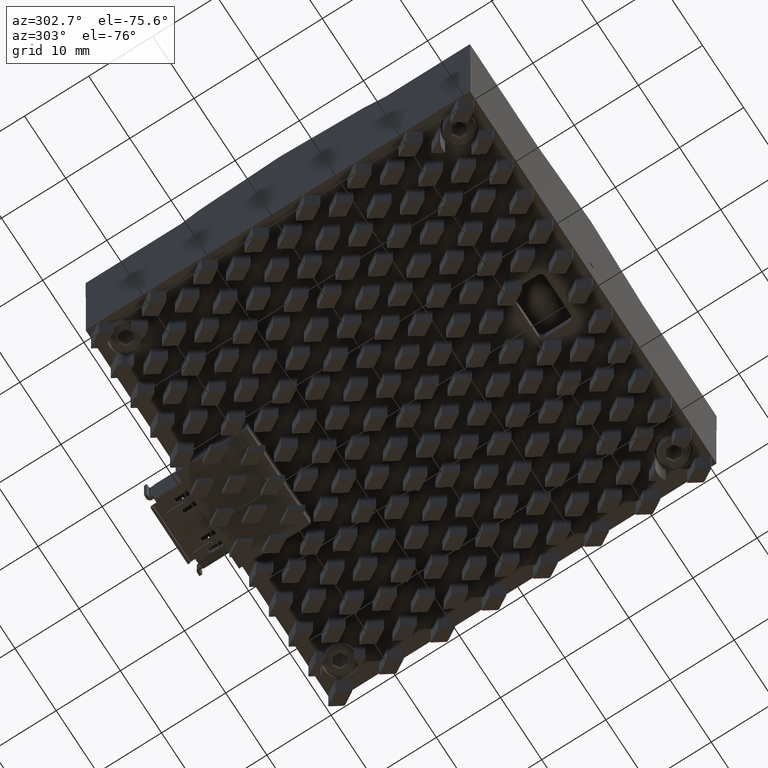
[diagram: clean part render]
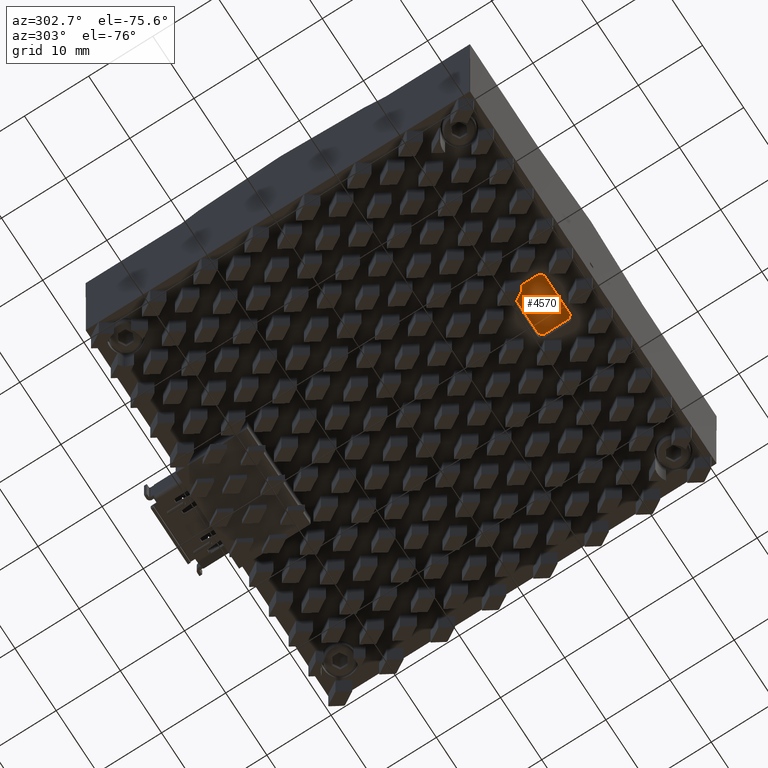
[diagram: same view with one face highlighted and labeled with its STEP entity id]
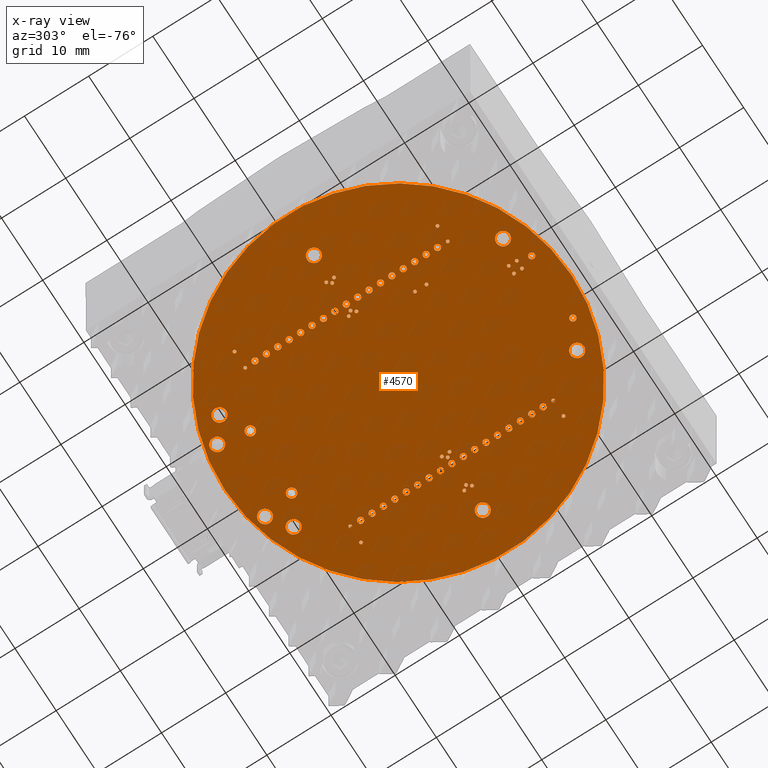
[diagram: x-ray of the same camera — body ghosted, the highlighted face saturated]
A machine part, auxiliary view. The second image highlights one B-rep face of the part: STEP entity #4570.
The next image is the same camera in x-ray: the body ghosted, the highlighted face saturated — about 25% of this face is hidden behind the body in this view.
In plain terms, the highlighted planar face has unit normal (0, 0, 1).
Its self-contained STEP definition (entity closure, byte-faithful):
#1094=PLANE('',#52629);
#3550=FACE_BOUND('',#10445,.T.);
#3551=FACE_BOUND('',#10446,.T.);
#3552=FACE_BOUND('',#10447,.T.);
#3553=FACE_BOUND('',#10448,.T.);
#3554=FACE_BOUND('',#10449,.T.);
#3555=FACE_BOUND('',#10450,.T.);
#3556=FACE_BOUND('',#10451,.T.);
#3557=FACE_BOUND('',#10452,.T.);
#3558=FACE_BOUND('',#10453,.T.);
#3559=FACE_BOUND('',#10454,.T.);
#3560=FACE_BOUND('',#10455,.T.);
#3561=FACE_BOUND('',#10456,.T.);
#3562=FACE_BOUND('',#10457,.T.);
#3563=FACE_BOUND('',#10458,.T.);
#3564=FACE_BOUND('',#10459,.T.);
#3565=FACE_BOUND('',#10460,.T.);
#3566=FACE_BOUND('',#10461,.T.);
#3567=FACE_BOUND('',#10462,.T.);
#3568=FACE_BOUND('',#10463,.T.);
#3569=FACE_BOUND('',#10464,.T.);
#3570=FACE_BOUND('',#10465,.T.);
#3571=FACE_BOUND('',#10466,.T.);
#3572=FACE_BOUND('',#10467,.T.);
#3573=FACE_BOUND('',#10468,.T.);
#3574=FACE_BOUND('',#10469,.T.);
#3575=FACE_BOUND('',#10470,.T.);
#3576=FACE_BOUND('',#10471,.T.);
#3577=FACE_BOUND('',#10472,.T.);
#3578=FACE_BOUND('',#10473,.T.);
#3579=FACE_BOUND('',#10474,.T.);
#3580=FACE_BOUND('',#10475,.T.);
#3581=FACE_BOUND('',#10476,.T.);
#3582=FACE_BOUND('',#10477,.T.);
#3583=FACE_BOUND('',#10478,.T.);
#3584=FACE_BOUND('',#10479,.T.);
#3585=FACE_BOUND('',#10480,.T.);
#3586=FACE_BOUND('',#10481,.T.);
#3587=FACE_BOUND('',#10482,.T.);
#3588=FACE_BOUND('',#10483,.T.);
#3589=FACE_BOUND('',#10484,.T.);
#3590=FACE_BOUND('',#10485,.T.);
#3591=FACE_BOUND('',#10486,.T.);
#3592=FACE_BOUND('',#10487,.T.);
#3593=FACE_BOUND('',#10488,.T.);
#3594=FACE_BOUND('',#10489,.T.);
#3595=FACE_BOUND('',#10490,.T.);
#3596=FACE_BOUND('',#10491,.T.);
#3597=FACE_BOUND('',#10492,.T.);
#3598=FACE_BOUND('',#10493,.T.);
#3599=FACE_BOUND('',#10494,.T.);
#3600=FACE_BOUND('',#10495,.T.);
#3601=FACE_BOUND('',#10496,.T.);
#3602=FACE_BOUND('',#10497,.T.);
#3603=FACE_BOUND('',#10498,.T.);
#3604=FACE_BOUND('',#10499,.T.);
#3605=FACE_BOUND('',#10500,.T.);
#3606=FACE_BOUND('',#10501,.T.);
#3607=FACE_BOUND('',#10502,.T.);
#3608=FACE_BOUND('',#10503,.T.);
#3609=FACE_BOUND('',#10504,.T.);
#3610=FACE_BOUND('',#10505,.T.);
#3611=FACE_BOUND('',#10506,.T.);
#3612=FACE_BOUND('',#10507,.T.);
#3613=FACE_BOUND('',#10508,.T.);
#3614=FACE_BOUND('',#10509,.T.);
#3615=FACE_BOUND('',#10510,.T.);
#3616=FACE_BOUND('',#10511,.T.);
#3617=FACE_BOUND('',#10512,.T.);
#3618=FACE_BOUND('',#10513,.T.);
#3619=FACE_BOUND('',#10514,.T.);
#3620=FACE_BOUND('',#10515,.T.);
#3621=FACE_BOUND('',#10516,.T.);
#3622=FACE_BOUND('',#10517,.T.);
#4570=ADVANCED_FACE('',(#3550,#3551,#3552,#3553,#3554,#3555,#3556,#3557,
#3558,#3559,#3560,#3561,#3562,#3563,#3564,#3565,#3566,#3567,#3568,#3569,
#3570,#3571,#3572,#3573,#3574,#3575,#3576,#3577,#3578,#3579,#3580,#3581,
#3582,#3583,#3584,#3585,#3586,#3587,#3588,#3589,#3590,#3591,#3592,#3593,
#3594,#3595,#3596,#3597,#3598,#3599,#3600,#3601,#3602,#3603,#3604,#3605,
#3606,#3607,#3608,#3609,#3610,#3611,#3612,#3613,#3614,#3615,#3616,#3617,
#3618,#3619,#3620,#3621,#3622),#1094,.F.);
#10445=EDGE_LOOP('',(#26773));
#10446=EDGE_LOOP('',(#26774));
#10447=EDGE_LOOP('',(#26775));
#10448=EDGE_LOOP('',(#26776));
#10449=EDGE_LOOP('',(#26777));
#10450=EDGE_LOOP('',(#26778));
#10451=EDGE_LOOP('',(#26779));
#10452=EDGE_LOOP('',(#26780));
#10453=EDGE_LOOP('',(#26781));
#10454=EDGE_LOOP('',(#26782));
#10455=EDGE_LOOP('',(#26783));
#10456=EDGE_LOOP('',(#26784));
#10457=EDGE_LOOP('',(#26785));
#10458=EDGE_LOOP('',(#26786));
#10459=EDGE_LOOP('',(#26787));
#10460=EDGE_LOOP('',(#26788));
#10461=EDGE_LOOP('',(#26789));
#10462=EDGE_LOOP('',(#26790));
#10463=EDGE_LOOP('',(#26791));
#10464=EDGE_LOOP('',(#26792));
#10465=EDGE_LOOP('',(#26793));
#10466=EDGE_LOOP('',(#26794));
#10467=EDGE_LOOP('',(#26795));
#10468=EDGE_LOOP('',(#26796));
#10469=EDGE_LOOP('',(#26797));
#10470=EDGE_LOOP('',(#26798));
#10471=EDGE_LOOP('',(#26799));
#10472=EDGE_LOOP('',(#26800));
#10473=EDGE_LOOP('',(#26801));
#10474=EDGE_LOOP('',(#26802));
#10475=EDGE_LOOP('',(#26803));
#10476=EDGE_LOOP('',(#26804));
#10477=EDGE_LOOP('',(#26805));
#10478=EDGE_LOOP('',(#26806));
#10479=EDGE_LOOP('',(#26807));
#10480=EDGE_LOOP('',(#26808));
#10481=EDGE_LOOP('',(#26809));
#10482=EDGE_LOOP('',(#26810));
#10483=EDGE_LOOP('',(#26811));
#10484=EDGE_LOOP('',(#26812));
#10485=EDGE_LOOP('',(#26813));
#10486=EDGE_LOOP('',(#26814));
#10487=EDGE_LOOP('',(#26815));
#10488=EDGE_LOOP('',(#26816));
#10489=EDGE_LOOP('',(#26817));
#10490=EDGE_LOOP('',(#26818));
#10491=EDGE_LOOP('',(#26819));
#10492=EDGE_LOOP('',(#26820));
#10493=EDGE_LOOP('',(#26821));
#10494=EDGE_LOOP('',(#26822));
#10495=EDGE_LOOP('',(#26823));
#10496=EDGE_LOOP('',(#26824));
#10497=EDGE_LOOP('',(#26825));
#10498=EDGE_LOOP('',(#26826));
#10499=EDGE_LOOP('',(#26827));
#10500=EDGE_LOOP('',(#26828));
#10501=EDGE_LOOP('',(#26829));
#10502=EDGE_LOOP('',(#26830));
#10503=EDGE_LOOP('',(#26831));
#10504=EDGE_LOOP('',(#26832));
#10505=EDGE_LOOP('',(#26833));
#10506=EDGE_LOOP('',(#26834));
#10507=EDGE_LOOP('',(#26835));
#10508=EDGE_LOOP('',(#26836));
#10509=EDGE_LOOP('',(#26837));
#10510=EDGE_LOOP('',(#26838));
#10511=EDGE_LOOP('',(#26839));
#10512=EDGE_LOOP('',(#26840));
#10513=EDGE_LOOP('',(#26841));
#10514=EDGE_LOOP('',(#26842));
#10515=EDGE_LOOP('',(#26843));
#10516=EDGE_LOOP('',(#26844));
#10517=EDGE_LOOP('',(#26845));
#26773=ORIENTED_EDGE('',*,*,#44620,.F.);
#26774=ORIENTED_EDGE('',*,*,#44621,.F.);
#26775=ORIENTED_EDGE('',*,*,#44622,.F.);
#26776=ORIENTED_EDGE('',*,*,#44623,.F.);
#26777=ORIENTED_EDGE('',*,*,#44624,.F.);
#26778=ORIENTED_EDGE('',*,*,#44625,.F.);
#26779=ORIENTED_EDGE('',*,*,#44626,.F.);
#26780=ORIENTED_EDGE('',*,*,#44627,.F.);
#26781=ORIENTED_EDGE('',*,*,#44628,.F.);
#26782=ORIENTED_EDGE('',*,*,#44629,.F.);
#26783=ORIENTED_EDGE('',*,*,#44630,.F.);
#26784=ORIENTED_EDGE('',*,*,#44631,.F.);
#26785=ORIENTED_EDGE('',*,*,#44632,.F.);
#26786=ORIENTED_EDGE('',*,*,#44633,.F.);
#26787=ORIENTED_EDGE('',*,*,#44634,.F.);
#26788=ORIENTED_EDGE('',*,*,#44635,.F.);
#26789=ORIENTED_EDGE('',*,*,#44636,.F.);
#26790=ORIENTED_EDGE('',*,*,#44637,.F.);
#26791=ORIENTED_EDGE('',*,*,#44638,.F.);
#26792=ORIENTED_EDGE('',*,*,#44639,.F.);
#26793=ORIENTED_EDGE('',*,*,#44640,.F.);
#26794=ORIENTED_EDGE('',*,*,#44641,.F.);
#26795=ORIENTED_EDGE('',*,*,#44642,.F.);
#26796=ORIENTED_EDGE('',*,*,#44643,.F.);
#26797=ORIENTED_EDGE('',*,*,#44644,.F.);
#26798=ORIENTED_EDGE('',*,*,#44645,.F.);
#26799=ORIENTED_EDGE('',*,*,#44646,.F.);
#26800=ORIENTED_EDGE('',*,*,#44647,.F.);
#26801=ORIENTED_EDGE('',*,*,#44648,.F.);
#26802=ORIENTED_EDGE('',*,*,#44649,.F.);
#26803=ORIENTED_EDGE('',*,*,#44650,.F.);
#26804=ORIENTED_EDGE('',*,*,#44651,.F.);
#26805=ORIENTED_EDGE('',*,*,#44652,.F.);
#26806=ORIENTED_EDGE('',*,*,#44653,.F.);
#26807=ORIENTED_EDGE('',*,*,#44654,.F.);
#26808=ORIENTED_EDGE('',*,*,#44655,.F.);
#26809=ORIENTED_EDGE('',*,*,#44656,.F.);
#26810=ORIENTED_EDGE('',*,*,#44657,.F.);
#26811=ORIENTED_EDGE('',*,*,#44658,.F.);
#26812=ORIENTED_EDGE('',*,*,#44659,.F.);
#26813=ORIENTED_EDGE('',*,*,#44660,.F.);
#26814=ORIENTED_EDGE('',*,*,#44661,.F.);
#26815=ORIENTED_EDGE('',*,*,#44662,.F.);
#26816=ORIENTED_EDGE('',*,*,#44663,.F.);
#26817=ORIENTED_EDGE('',*,*,#44664,.F.);
#26818=ORIENTED_EDGE('',*,*,#44665,.F.);
#26819=ORIENTED_EDGE('',*,*,#44666,.F.);
#26820=ORIENTED_EDGE('',*,*,#44667,.F.);
#26821=ORIENTED_EDGE('',*,*,#44668,.F.);
#26822=ORIENTED_EDGE('',*,*,#44669,.F.);
#26823=ORIENTED_EDGE('',*,*,#44670,.F.);
#26824=ORIENTED_EDGE('',*,*,#44671,.F.);
#26825=ORIENTED_EDGE('',*,*,#44672,.F.);
#26826=ORIENTED_EDGE('',*,*,#44673,.F.);
#26827=ORIENTED_EDGE('',*,*,#44674,.F.);
#26828=ORIENTED_EDGE('',*,*,#44675,.F.);
#26829=ORIENTED_EDGE('',*,*,#44676,.F.);
#26830=ORIENTED_EDGE('',*,*,#44677,.F.);
#26831=ORIENTED_EDGE('',*,*,#44678,.F.);
#26832=ORIENTED_EDGE('',*,*,#44679,.F.);
#26833=ORIENTED_EDGE('',*,*,#44680,.F.);
#26834=ORIENTED_EDGE('',*,*,#44681,.F.);
#26835=ORIENTED_EDGE('',*,*,#44682,.F.);
#26836=ORIENTED_EDGE('',*,*,#44683,.F.);
#26837=ORIENTED_EDGE('',*,*,#44684,.F.);
#26838=ORIENTED_EDGE('',*,*,#44685,.F.);
#26839=ORIENTED_EDGE('',*,*,#44686,.F.);
#26840=ORIENTED_EDGE('',*,*,#44687,.F.);
#26841=ORIENTED_EDGE('',*,*,#44688,.F.);
#26842=ORIENTED_EDGE('',*,*,#44689,.F.);
#26843=ORIENTED_EDGE('',*,*,#44690,.F.);
#26844=ORIENTED_EDGE('',*,*,#44691,.F.);
#26845=ORIENTED_EDGE('',*,*,#44692,.F.);
#39695=VERTEX_POINT('',#71504);
#39696=VERTEX_POINT('',#71506);
#39697=VERTEX_POINT('',#71508);
#39698=VERTEX_POINT('',#71510);
#39699=VERTEX_POINT('',#71512);
#39700=VERTEX_POINT('',#71514);
#39701=VERTEX_POINT('',#71516);
#39702=VERTEX_POINT('',#71518);
#39703=VERTEX_POINT('',#71520);
#39704=VERTEX_POINT('',#71522);
#39705=VERTEX_POINT('',#71524);
#39706=VERTEX_POINT('',#71526);
#39707=VERTEX_POINT('',#71528);
#39708=VERTEX_POINT('',#71530);
#39709=VERTEX_POINT('',#71532);
#39710=VERTEX_POINT('',#71534);
#39711=VERTEX_POINT('',#71536);
#39712=VERTEX_POINT('',#71538);
#39713=VERTEX_POINT('',#71540);
#39714=VERTEX_POINT('',#71542);
#39715=VERTEX_POINT('',#71544);
#39716=VERTEX_POINT('',#71546);
#39717=VERTEX_POINT('',#71548);
#39718=VERTEX_POINT('',#71550);
#39719=VERTEX_POINT('',#71552);
#39720=VERTEX_POINT('',#71554);
#39721=VERTEX_POINT('',#71556);
#39722=VERTEX_POINT('',#71558);
#39723=VERTEX_POINT('',#71560);
#39724=VERTEX_POINT('',#71562);
#39725=VERTEX_POINT('',#71564);
#39726=VERTEX_POINT('',#71566);
#39727=VERTEX_POINT('',#71568);
#39728=VERTEX_POINT('',#71570);
#39729=VERTEX_POINT('',#71572);
#39730=VERTEX_POINT('',#71574);
#39731=VERTEX_POINT('',#71576);
#39732=VERTEX_POINT('',#71578);
#39733=VERTEX_POINT('',#71580);
#39734=VERTEX_POINT('',#71582);
#39735=VERTEX_POINT('',#71584);
#39736=VERTEX_POINT('',#71586);
#39737=VERTEX_POINT('',#71588);
#39738=VERTEX_POINT('',#71590);
#39739=VERTEX_POINT('',#71592);
#39740=VERTEX_POINT('',#71594);
#39741=VERTEX_POINT('',#71596);
#39742=VERTEX_POINT('',#71598);
#39743=VERTEX_POINT('',#71600);
#39744=VERTEX_POINT('',#71602);
#39745=VERTEX_POINT('',#71604);
#39746=VERTEX_POINT('',#71606);
#39747=VERTEX_POINT('',#71608);
#39748=VERTEX_POINT('',#71610);
#39749=VERTEX_POINT('',#71612);
#39750=VERTEX_POINT('',#71614);
#39751=VERTEX_POINT('',#71616);
#39752=VERTEX_POINT('',#71618);
#39753=VERTEX_POINT('',#71620);
#39754=VERTEX_POINT('',#71622);
#39755=VERTEX_POINT('',#71624);
#39756=VERTEX_POINT('',#71626);
#39757=VERTEX_POINT('',#71628);
#39758=VERTEX_POINT('',#71630);
#39759=VERTEX_POINT('',#71632);
#39760=VERTEX_POINT('',#71634);
#39761=VERTEX_POINT('',#71636);
#39762=VERTEX_POINT('',#71638);
#39763=VERTEX_POINT('',#71640);
#39764=VERTEX_POINT('',#71642);
#39765=VERTEX_POINT('',#71644);
#39766=VERTEX_POINT('',#71646);
#39767=VERTEX_POINT('',#71648);
#44620=EDGE_CURVE('',#39695,#39695,#51190,.T.);
#44621=EDGE_CURVE('',#39696,#39696,#51191,.T.);
#44622=EDGE_CURVE('',#39697,#39697,#51192,.T.);
#44623=EDGE_CURVE('',#39698,#39698,#51193,.T.);
#44624=EDGE_CURVE('',#39699,#39699,#51194,.T.);
#44625=EDGE_CURVE('',#39700,#39700,#51195,.T.);
#44626=EDGE_CURVE('',#39701,#39701,#51196,.T.);
#44627=EDGE_CURVE('',#39702,#39702,#51197,.T.);
#44628=EDGE_CURVE('',#39703,#39703,#51198,.T.);
#44629=EDGE_CURVE('',#39704,#39704,#51199,.T.);
#44630=EDGE_CURVE('',#39705,#39705,#51200,.T.);
#44631=EDGE_CURVE('',#39706,#39706,#51201,.T.);
#44632=EDGE_CURVE('',#39707,#39707,#51202,.T.);
#44633=EDGE_CURVE('',#39708,#39708,#51203,.T.);
#44634=EDGE_CURVE('',#39709,#39709,#51204,.T.);
#44635=EDGE_CURVE('',#39710,#39710,#51205,.T.);
#44636=EDGE_CURVE('',#39711,#39711,#51206,.T.);
#44637=EDGE_CURVE('',#39712,#39712,#51207,.T.);
#44638=EDGE_CURVE('',#39713,#39713,#51208,.T.);
#44639=EDGE_CURVE('',#39714,#39714,#51209,.T.);
#44640=EDGE_CURVE('',#39715,#39715,#51210,.T.);
#44641=EDGE_CURVE('',#39716,#39716,#51211,.T.);
#44642=EDGE_CURVE('',#39717,#39717,#51212,.T.);
#44643=EDGE_CURVE('',#39718,#39718,#51213,.T.);
#44644=EDGE_CURVE('',#39719,#39719,#51214,.T.);
#44645=EDGE_CURVE('',#39720,#39720,#51215,.T.);
#44646=EDGE_CURVE('',#39721,#39721,#51216,.T.);
#44647=EDGE_CURVE('',#39722,#39722,#51217,.T.);
#44648=EDGE_CURVE('',#39723,#39723,#51218,.T.);
#44649=EDGE_CURVE('',#39724,#39724,#51219,.T.);
#44650=EDGE_CURVE('',#39725,#39725,#51220,.T.);
#44651=EDGE_CURVE('',#39726,#39726,#51221,.T.);
#44652=EDGE_CURVE('',#39727,#39727,#51222,.T.);
#44653=EDGE_CURVE('',#39728,#39728,#51223,.T.);
#44654=EDGE_CURVE('',#39729,#39729,#51224,.T.);
#44655=EDGE_CURVE('',#39730,#39730,#51225,.T.);
#44656=EDGE_CURVE('',#39731,#39731,#51226,.T.);
#44657=EDGE_CURVE('',#39732,#39732,#51227,.T.);
#44658=EDGE_CURVE('',#39733,#39733,#51228,.T.);
#44659=EDGE_CURVE('',#39734,#39734,#51229,.T.);
#44660=EDGE_CURVE('',#39735,#39735,#51230,.T.);
#44661=EDGE_CURVE('',#39736,#39736,#51231,.T.);
#44662=EDGE_CURVE('',#39737,#39737,#51232,.T.);
#44663=EDGE_CURVE('',#39738,#39738,#51233,.T.);
#44664=EDGE_CURVE('',#39739,#39739,#51234,.T.);
#44665=EDGE_CURVE('',#39740,#39740,#51235,.T.);
#44666=EDGE_CURVE('',#39741,#39741,#51236,.T.);
#44667=EDGE_CURVE('',#39742,#39742,#51237,.T.);
#44668=EDGE_CURVE('',#39743,#39743,#51238,.T.);
#44669=EDGE_CURVE('',#39744,#39744,#51239,.T.);
#44670=EDGE_CURVE('',#39745,#39745,#51240,.T.);
#44671=EDGE_CURVE('',#39746,#39746,#51241,.T.);
#44672=EDGE_CURVE('',#39747,#39747,#51242,.T.);
#44673=EDGE_CURVE('',#39748,#39748,#51243,.T.);
#44674=EDGE_CURVE('',#39749,#39749,#51244,.T.);
#44675=EDGE_CURVE('',#39750,#39750,#51245,.T.);
#44676=EDGE_CURVE('',#39751,#39751,#51246,.T.);
#44677=EDGE_CURVE('',#39752,#39752,#51247,.T.);
#44678=EDGE_CURVE('',#39753,#39753,#51248,.T.);
#44679=EDGE_CURVE('',#39754,#39754,#51249,.T.);
#44680=EDGE_CURVE('',#39755,#39755,#51250,.T.);
#44681=EDGE_CURVE('',#39756,#39756,#51251,.T.);
#44682=EDGE_CURVE('',#39757,#39757,#51252,.T.);
#44683=EDGE_CURVE('',#39758,#39758,#51253,.T.);
#44684=EDGE_CURVE('',#39759,#39759,#51254,.T.);
#44685=EDGE_CURVE('',#39760,#39760,#51255,.T.);
#44686=EDGE_CURVE('',#39761,#39761,#51256,.T.);
#44687=EDGE_CURVE('',#39762,#39762,#51257,.T.);
#44688=EDGE_CURVE('',#39763,#39763,#51258,.T.);
#44689=EDGE_CURVE('',#39764,#39764,#51259,.T.);
#44690=EDGE_CURVE('',#39765,#39765,#51260,.T.);
#44691=EDGE_CURVE('',#39766,#39766,#51261,.T.);
#44692=EDGE_CURVE('',#39767,#39767,#51262,.T.);
#51190=CIRCLE('',#52556,0.2512695);
#51191=CIRCLE('',#52557,0.2512695);
#51192=CIRCLE('',#52558,0.2512695);
#51193=CIRCLE('',#52559,0.2512695);
#51194=CIRCLE('',#52560,0.2512695);
#51195=CIRCLE('',#52561,0.2512695);
#51196=CIRCLE('',#52562,0.2512695);
#51197=CIRCLE('',#52563,0.251269500000002);
#51198=CIRCLE('',#52564,0.251269500000002);
#51199=CIRCLE('',#52565,0.251269500000002);
#51200=CIRCLE('',#52566,0.47627032);
#51201=CIRCLE('',#52567,0.75126977);
#51202=CIRCLE('',#52568,1.05127044);
#51203=CIRCLE('',#52569,0.47627032);
#51204=CIRCLE('',#52570,1.05127044);
#51205=CIRCLE('',#52571,1.05127044);
#51206=CIRCLE('',#52572,1.05127044);
#51207=CIRCLE('',#52573,0.2512695);
#51208=CIRCLE('',#52574,0.47627032);
#51209=CIRCLE('',#52575,0.47627032);
#51210=CIRCLE('',#52576,0.47627032);
#51211=CIRCLE('',#52577,0.47627032);
#51212=CIRCLE('',#52578,0.47627032);
#51213=CIRCLE('',#52579,0.47627032);
#51214=CIRCLE('',#52580,0.47627032);
#51215=CIRCLE('',#52581,0.47627032);
#51216=CIRCLE('',#52582,0.47627032);
#51217=CIRCLE('',#52583,0.47627032);
#51218=CIRCLE('',#52584,0.47627032);
#51219=CIRCLE('',#52585,0.47627032);
#51220=CIRCLE('',#52586,0.47627032);
#51221=CIRCLE('',#52587,0.47627032);
#51222=CIRCLE('',#52588,0.47627032);
#51223=CIRCLE('',#52589,0.2512695);
#51224=CIRCLE('',#52590,0.2512695);
#51225=CIRCLE('',#52591,0.47627032);
#51226=CIRCLE('',#52592,26.99999934);
#51227=CIRCLE('',#52593,1.05127044);
#51228=CIRCLE('',#52594,0.2512695);
#51229=CIRCLE('',#52595,0.47627032);
#51230=CIRCLE('',#52596,0.47627032);
#51231=CIRCLE('',#52597,0.47627032);
#51232=CIRCLE('',#52598,0.47627032);
#51233=CIRCLE('',#52599,0.47627032);
#51234=CIRCLE('',#52600,0.47627032);
#51235=CIRCLE('',#52601,0.47627032);
#51236=CIRCLE('',#52602,0.47627032);
#51237=CIRCLE('',#52603,0.47627032);
#51238=CIRCLE('',#52604,0.47627032);
#51239=CIRCLE('',#52605,0.47627032);
#51240=CIRCLE('',#52606,0.47627032);
#51241=CIRCLE('',#52607,0.47627032);
#51242=CIRCLE('',#52608,0.47627032);
#51243=CIRCLE('',#52609,0.47627032);
#51244=CIRCLE('',#52610,0.47627032);
#51245=CIRCLE('',#52611,0.2512695);
#51246=CIRCLE('',#52612,1.05127044);
#51247=CIRCLE('',#52613,1.05127044);
#51248=CIRCLE('',#52614,0.47627032);
#51249=CIRCLE('',#52615,1.05127044);
#51250=CIRCLE('',#52616,0.75126977);
#51251=CIRCLE('',#52617,0.47627032);
#51252=CIRCLE('',#52618,0.2512695);
#51253=CIRCLE('',#52619,0.251269500000002);
#51254=CIRCLE('',#52620,0.251269500000002);
#51255=CIRCLE('',#52621,0.251269500000002);
#51256=CIRCLE('',#52622,0.2512695);
#51257=CIRCLE('',#52623,0.2512695);
#51258=CIRCLE('',#52624,0.2512695);
#51259=CIRCLE('',#52625,0.2512695);
#51260=CIRCLE('',#52626,0.2512695);
#51261=CIRCLE('',#52627,0.2512695);
#51262=CIRCLE('',#52628,0.2512695);
#52556=AXIS2_PLACEMENT_3D('',#71503,#57469,#57470);
#52557=AXIS2_PLACEMENT_3D('',#71505,#57471,#57472);
#52558=AXIS2_PLACEMENT_3D('',#71507,#57473,#57474);
#52559=AXIS2_PLACEMENT_3D('',#71509,#57475,#57476);
#52560=AXIS2_PLACEMENT_3D('',#71511,#57477,#57478);
#52561=AXIS2_PLACEMENT_3D('',#71513,#57479,#57480);
#52562=AXIS2_PLACEMENT_3D('',#71515,#57481,#57482);
#52563=AXIS2_PLACEMENT_3D('',#71517,#57483,#57484);
#52564=AXIS2_PLACEMENT_3D('',#71519,#57485,#57486);
#52565=AXIS2_PLACEMENT_3D('',#71521,#57487,#57488);
#52566=AXIS2_PLACEMENT_3D('',#71523,#57489,#57490);
#52567=AXIS2_PLACEMENT_3D('',#71525,#57491,#57492);
#52568=AXIS2_PLACEMENT_3D('',#71527,#57493,#57494);
#52569=AXIS2_PLACEMENT_3D('',#71529,#57495,#57496);
#52570=AXIS2_PLACEMENT_3D('',#71531,#57497,#57498);
#52571=AXIS2_PLACEMENT_3D('',#71533,#57499,#57500);
#52572=AXIS2_PLACEMENT_3D('',#71535,#57501,#57502);
#52573=AXIS2_PLACEMENT_3D('',#71537,#57503,#57504);
#52574=AXIS2_PLACEMENT_3D('',#71539,#57505,#57506);
#52575=AXIS2_PLACEMENT_3D('',#71541,#57507,#57508);
#52576=AXIS2_PLACEMENT_3D('',#71543,#57509,#57510);
#52577=AXIS2_PLACEMENT_3D('',#71545,#57511,#57512);
#52578=AXIS2_PLACEMENT_3D('',#71547,#57513,#57514);
#52579=AXIS2_PLACEMENT_3D('',#71549,#57515,#57516);
#52580=AXIS2_PLACEMENT_3D('',#71551,#57517,#57518);
#52581=AXIS2_PLACEMENT_3D('',#71553,#57519,#57520);
#52582=AXIS2_PLACEMENT_3D('',#71555,#57521,#57522);
#52583=AXIS2_PLACEMENT_3D('',#71557,#57523,#57524);
#52584=AXIS2_PLACEMENT_3D('',#71559,#57525,#57526);
#52585=AXIS2_PLACEMENT_3D('',#71561,#57527,#57528);
#52586=AXIS2_PLACEMENT_3D('',#71563,#57529,#57530);
#52587=AXIS2_PLACEMENT_3D('',#71565,#57531,#57532);
#52588=AXIS2_PLACEMENT_3D('',#71567,#57533,#57534);
#52589=AXIS2_PLACEMENT_3D('',#71569,#57535,#57536);
#52590=AXIS2_PLACEMENT_3D('',#71571,#57537,#57538);
#52591=AXIS2_PLACEMENT_3D('',#71573,#57539,#57540);
#52592=AXIS2_PLACEMENT_3D('',#71575,#57541,#57542);
#52593=AXIS2_PLACEMENT_3D('',#71577,#57543,#57544);
#52594=AXIS2_PLACEMENT_3D('',#71579,#57545,#57546);
#52595=AXIS2_PLACEMENT_3D('',#71581,#57547,#57548);
#52596=AXIS2_PLACEMENT_3D('',#71583,#57549,#57550);
#52597=AXIS2_PLACEMENT_3D('',#71585,#57551,#57552);
#52598=AXIS2_PLACEMENT_3D('',#71587,#57553,#57554);
#52599=AXIS2_PLACEMENT_3D('',#71589,#57555,#57556);
#52600=AXIS2_PLACEMENT_3D('',#71591,#57557,#57558);
#52601=AXIS2_PLACEMENT_3D('',#71593,#57559,#57560);
#52602=AXIS2_PLACEMENT_3D('',#71595,#57561,#57562);
#52603=AXIS2_PLACEMENT_3D('',#71597,#57563,#57564);
#52604=AXIS2_PLACEMENT_3D('',#71599,#57565,#57566);
#52605=AXIS2_PLACEMENT_3D('',#71601,#57567,#57568);
#52606=AXIS2_PLACEMENT_3D('',#71603,#57569,#57570);
#52607=AXIS2_PLACEMENT_3D('',#71605,#57571,#57572);
#52608=AXIS2_PLACEMENT_3D('',#71607,#57573,#57574);
#52609=AXIS2_PLACEMENT_3D('',#71609,#57575,#57576);
#52610=AXIS2_PLACEMENT_3D('',#71611,#57577,#57578);
#52611=AXIS2_PLACEMENT_3D('',#71613,#57579,#57580);
#52612=AXIS2_PLACEMENT_3D('',#71615,#57581,#57582);
#52613=AXIS2_PLACEMENT_3D('',#71617,#57583,#57584);
#52614=AXIS2_PLACEMENT_3D('',#71619,#57585,#57586);
#52615=AXIS2_PLACEMENT_3D('',#71621,#57587,#57588);
#52616=AXIS2_PLACEMENT_3D('',#71623,#57589,#57590);
#52617=AXIS2_PLACEMENT_3D('',#71625,#57591,#57592);
#52618=AXIS2_PLACEMENT_3D('',#71627,#57593,#57594);
#52619=AXIS2_PLACEMENT_3D('',#71629,#57595,#57596);
#52620=AXIS2_PLACEMENT_3D('',#71631,#57597,#57598);
#52621=AXIS2_PLACEMENT_3D('',#71633,#57599,#57600);
#52622=AXIS2_PLACEMENT_3D('',#71635,#57601,#57602);
#52623=AXIS2_PLACEMENT_3D('',#71637,#57603,#57604);
#52624=AXIS2_PLACEMENT_3D('',#71639,#57605,#57606);
#52625=AXIS2_PLACEMENT_3D('',#71641,#57607,#57608);
#52626=AXIS2_PLACEMENT_3D('',#71643,#57609,#57610);
#52627=AXIS2_PLACEMENT_3D('',#71645,#57611,#57612);
#52628=AXIS2_PLACEMENT_3D('',#71647,#57613,#57614);
#52629=AXIS2_PLACEMENT_3D('',#71649,#57615,#57616);
#57469=DIRECTION('',(0.,-1.,0.));
#57470=DIRECTION('',(0.,0.,0.999999999999993));
#57471=DIRECTION('',(0.,-1.,0.));
#57472=DIRECTION('',(0.,0.,0.999999999999993));
#57473=DIRECTION('',(0.,-1.,0.));
#57474=DIRECTION('',(0.,0.,1.));
#57475=DIRECTION('',(0.,-1.,0.));
#57476=DIRECTION('',(0.,0.,1.));
#57477=DIRECTION('',(0.,-1.,0.));
#57478=DIRECTION('',(0.,0.,1.));
#57479=DIRECTION('',(0.,-1.,0.));
#57480=DIRECTION('',(0.,0.,1.));
#57481=DIRECTION('',(0.,-1.,0.));
#57482=DIRECTION('',(0.,0.,1.));
#57483=DIRECTION('',(0.,-1.,0.));
#57484=DIRECTION('',(0.,0.,1.));
#57485=DIRECTION('',(0.,-1.,0.));
#57486=DIRECTION('',(0.,0.,1.));
#57487=DIRECTION('',(0.,-1.,0.));
#57488=DIRECTION('',(0.,0.,1.));
#57489=DIRECTION('',(0.,-1.,0.));
#57490=DIRECTION('',(0.,0.,1.));
#57491=DIRECTION('',(0.,-1.,0.));
#57492=DIRECTION('',(0.,0.,1.));
#57493=DIRECTION('',(0.,-1.,0.));
#57494=DIRECTION('',(0.,0.,0.999999999999998));
#57495=DIRECTION('',(0.,-1.,0.));
#57496=DIRECTION('',(0.,0.,1.));
#57497=DIRECTION('',(0.,-1.,0.));
#57498=DIRECTION('',(0.,0.,1.));
#57499=DIRECTION('',(0.,-1.,0.));
#57500=DIRECTION('',(0.,0.,1.));
#57501=DIRECTION('',(0.,-1.,0.));
#57502=DIRECTION('',(0.,0.,1.));
#57503=DIRECTION('',(0.,-1.,0.));
#57504=DIRECTION('',(0.,0.,1.));
#57505=DIRECTION('',(0.,-1.,0.));
#57506=DIRECTION('',(0.,0.,1.));
#57507=DIRECTION('',(0.,-1.,0.));
#57508=DIRECTION('',(0.,0.,1.));
#57509=DIRECTION('',(0.,-1.,0.));
#57510=DIRECTION('',(0.,0.,1.));
#57511=DIRECTION('',(0.,-1.,0.));
#57512=DIRECTION('',(0.,0.,1.));
#57513=DIRECTION('',(0.,-1.,0.));
#57514=DIRECTION('',(0.,0.,1.));
#57515=DIRECTION('',(0.,-1.,0.));
#57516=DIRECTION('',(0.,0.,1.));
#57517=DIRECTION('',(0.,-1.,0.));
#57518=DIRECTION('',(0.,0.,1.));
#57519=DIRECTION('',(0.,-1.,0.));
#57520=DIRECTION('',(0.,0.,1.));
#57521=DIRECTION('',(0.,-1.,0.));
#57522=DIRECTION('',(0.,0.,1.));
#57523=DIRECTION('',(0.,-1.,0.));
#57524=DIRECTION('',(0.,0.,1.));
#57525=DIRECTION('',(0.,-1.,0.));
#57526=DIRECTION('',(0.,0.,1.));
#57527=DIRECTION('',(0.,-1.,0.));
#57528=DIRECTION('',(0.,0.,1.));
#57529=DIRECTION('',(0.,-1.,0.));
#57530=DIRECTION('',(0.,0.,1.));
#57531=DIRECTION('',(0.,-1.,0.));
#57532=DIRECTION('',(0.,0.,1.));
#57533=DIRECTION('',(0.,-1.,0.));
#57534=DIRECTION('',(0.,0.,1.));
#57535=DIRECTION('',(0.,-1.,0.));
#57536=DIRECTION('',(0.,0.,0.999999999999993));
#57537=DIRECTION('',(0.,-1.,0.));
#57538=DIRECTION('',(0.,0.,1.00000000000001));
#57539=DIRECTION('',(0.,-1.,0.));
#57540=DIRECTION('',(0.,0.,1.));
#57541=DIRECTION('',(0.,1.,0.));
#57542=DIRECTION('',(0.,0.,1.));
#57543=DIRECTION('',(0.,-1.,0.));
#57544=DIRECTION('',(0.,0.,1.));
#57545=DIRECTION('',(0.,-1.,0.));
#57546=DIRECTION('',(0.,0.,1.00000000000001));
#57547=DIRECTION('',(0.,-1.,0.));
#57548=DIRECTION('',(0.,0.,1.));
#57549=DIRECTION('',(0.,-1.,0.));
#57550=DIRECTION('',(0.,0.,1.));
#57551=DIRECTION('',(0.,-1.,0.));
#57552=DIRECTION('',(0.,0.,1.));
#57553=DIRECTION('',(0.,-1.,0.));
#57554=DIRECTION('',(0.,0.,1.));
#57555=DIRECTION('',(0.,-1.,0.));
#57556=DIRECTION('',(0.,0.,1.));
#57557=DIRECTION('',(0.,-1.,0.));
#57558=DIRECTION('',(0.,0.,1.));
#57559=DIRECTION('',(0.,-1.,0.));
#57560=DIRECTION('',(0.,0.,1.));
#57561=DIRECTION('',(0.,-1.,0.));
#57562=DIRECTION('',(0.,0.,1.));
#57563=DIRECTION('',(0.,-1.,0.));
#57564=DIRECTION('',(0.,0.,1.));
#57565=DIRECTION('',(0.,-1.,0.));
#57566=DIRECTION('',(0.,0.,1.));
#57567=DIRECTION('',(0.,-1.,0.));
#57568=DIRECTION('',(0.,0.,1.));
#57569=DIRECTION('',(0.,-1.,0.));
#57570=DIRECTION('',(0.,0.,1.));
#57571=DIRECTION('',(0.,-1.,0.));
#57572=DIRECTION('',(0.,0.,1.));
#57573=DIRECTION('',(0.,-1.,0.));
#57574=DIRECTION('',(0.,0.,1.));
#57575=DIRECTION('',(0.,-1.,0.));
#57576=DIRECTION('',(0.,0.,1.));
#57577=DIRECTION('',(0.,-1.,0.));
#57578=DIRECTION('',(0.,0.,1.));
#57579=DIRECTION('',(0.,-1.,0.));
#57580=DIRECTION('',(0.,0.,1.));
#57581=DIRECTION('',(0.,-1.,0.));
#57582=DIRECTION('',(0.,0.,1.));
#57583=DIRECTION('',(0.,-1.,0.));
#57584=DIRECTION('',(0.,0.,1.));
#57585=DIRECTION('',(0.,-1.,0.));
#57586=DIRECTION('',(0.,0.,1.));
#57587=DIRECTION('',(0.,-1.,0.));
#57588=DIRECTION('',(0.,0.,0.999999999999998));
#57589=DIRECTION('',(0.,-1.,0.));
#57590=DIRECTION('',(0.,0.,1.));
#57591=DIRECTION('',(0.,-1.,0.));
#57592=DIRECTION('',(0.,0.,1.));
#57593=DIRECTION('',(0.,-1.,0.));
#57594=DIRECTION('',(0.,0.,0.999999999999993));
#57595=DIRECTION('',(0.,-1.,0.));
#57596=DIRECTION('',(0.,0.,1.));
#57597=DIRECTION('',(0.,-1.,0.));
#57598=DIRECTION('',(0.,0.,1.));
#57599=DIRECTION('',(0.,-1.,0.));
#57600=DIRECTION('',(0.,0.,1.));
#57601=DIRECTION('',(0.,-1.,0.));
#57602=DIRECTION('',(0.,0.,1.));
#57603=DIRECTION('',(0.,-1.,0.));
#57604=DIRECTION('',(0.,0.,1.));
#57605=DIRECTION('',(0.,-1.,0.));
#57606=DIRECTION('',(0.,0.,1.));
#57607=DIRECTION('',(0.,-1.,0.));
#57608=DIRECTION('',(0.,0.,1.));
#57609=DIRECTION('',(0.,-1.,0.));
#57610=DIRECTION('',(0.,0.,1.));
#57611=DIRECTION('',(0.,-1.,0.));
#57612=DIRECTION('',(0.,0.,0.999999999999993));
#57613=DIRECTION('',(0.,-1.,0.));
#57614=DIRECTION('',(0.,0.,0.999999999999993));
#57615=DIRECTION('',(0.,1.,0.));
#57616=DIRECTION('',(0.,0.,1.));
#71503=CARTESIAN_POINT('',(-15.54999938,-0.95400114,15.79999888));
#71504=CARTESIAN_POINT('',(-15.54999938,-0.95400114,16.05126838));
#71505=CARTESIAN_POINT('',(12.5500003,-0.95400114,15.79999888));
#71506=CARTESIAN_POINT('',(12.5500003,-0.95400114,16.05126838));
#71507=CARTESIAN_POINT('',(15.10000028,-0.95400114,-15.79999888));
#71508=CARTESIAN_POINT('',(15.10000028,-0.95400114,-15.54872938));
#71509=CARTESIAN_POINT('',(-12.9999994,-0.95400114,-15.79999888));
#71510=CARTESIAN_POINT('',(-12.9999994,-0.95400114,-15.54872938));
#71511=CARTESIAN_POINT('',(-11.49999986,-0.95400114,0.5999988));
#71512=CARTESIAN_POINT('',(-11.49999986,-0.95400114,0.8512683));
#71513=CARTESIAN_POINT('',(11.10000066,-0.95400114,-0.5999988));
#71514=CARTESIAN_POINT('',(11.10000066,-0.95400114,-0.3487293));
#71515=CARTESIAN_POINT('',(11.59999966,-0.95400114,0.));
#71516=CARTESIAN_POINT('',(11.59999966,-0.95400114,0.2512695));
#71517=CARTESIAN_POINT('',(16.55000246,-0.95400114,0.5999988));
#71518=CARTESIAN_POINT('',(16.55000246,-0.95400114,0.851268300000002));
#71519=CARTESIAN_POINT('',(-16.95000166,-0.95400114,-0.5999988));
#71520=CARTESIAN_POINT('',(-16.95000166,-0.95400114,-0.348729299999998));
#71521=CARTESIAN_POINT('',(-16.45000266,-0.95400114,0.));
#71522=CARTESIAN_POINT('',(-16.45000266,-0.95400114,0.251269500000002));
#71523=CARTESIAN_POINT('',(12.63700038,-0.95400114,-3.556));
#71524=CARTESIAN_POINT('',(12.63700038,-0.95400114,-3.07972968));
#71525=CARTESIAN_POINT('',(5.0038,-0.95400114,19.85189832));
#71526=CARTESIAN_POINT('',(5.0038,-0.95400114,20.60316809));
#71527=CARTESIAN_POINT('',(-5.8000011,-0.95400114,24.49999926));
#71528=CARTESIAN_POINT('',(-5.8000011,-0.95400114,25.5512697));
#71529=CARTESIAN_POINT('',(-5.00000016,-0.95400114,-24.00000026));
#71530=CARTESIAN_POINT('',(-5.00000016,-0.95400114,-23.52372994));
#71531=CARTESIAN_POINT('',(8.99999978,-0.95400114,22.09999898));
#71532=CARTESIAN_POINT('',(8.99999978,-0.95400114,23.15126942));
#71533=CARTESIAN_POINT('',(-8.99999978,-0.95400114,22.09999898));
#71534=CARTESIAN_POINT('',(-8.99999978,-0.95400114,23.15126942));
#71535=CARTESIAN_POINT('',(20.49999964,-0.95400114,0.));
#71536=CARTESIAN_POINT('',(20.49999964,-0.95400114,1.05127044));
#71537=CARTESIAN_POINT('',(9.20000192,-0.95400114,-10.30000226));
#71538=CARTESIAN_POINT('',(9.20000192,-0.95400114,-10.04873276));
#71539=CARTESIAN_POINT('',(12.63700038,-0.95400114,12.446));
#71540=CARTESIAN_POINT('',(12.63700038,-0.95400114,12.92227032));
#71541=CARTESIAN_POINT('',(12.63700038,-0.95400114,8.89));
#71542=CARTESIAN_POINT('',(12.63700038,-0.95400114,9.36627032));
#71543=CARTESIAN_POINT('',(12.63700038,-0.95400114,5.334));
#71544=CARTESIAN_POINT('',(12.63700038,-0.95400114,5.81027032));
#71545=CARTESIAN_POINT('',(12.63700038,-0.95400114,0.));
#71546=CARTESIAN_POINT('',(12.63700038,-0.95400114,0.47627032));
#71547=CARTESIAN_POINT('',(12.63700038,-0.95400114,-5.334));
#71548=CARTESIAN_POINT('',(12.63700038,-0.95400114,-4.85772968));
#71549=CARTESIAN_POINT('',(12.63700038,-0.95400114,-8.89));
#71550=CARTESIAN_POINT('',(12.63700038,-0.95400114,-8.41372968));
#71551=CARTESIAN_POINT('',(12.63700038,-0.95400114,-12.446));
#71552=CARTESIAN_POINT('',(12.63700038,-0.95400114,-11.96972968));
#71553=CARTESIAN_POINT('',(-13.01699962,-0.95400114,-14.224));
#71554=CARTESIAN_POINT('',(-13.01699962,-0.95400114,-13.74772968));
#71555=CARTESIAN_POINT('',(-13.01699962,-0.95400114,-10.668));
#71556=CARTESIAN_POINT('',(-13.01699962,-0.95400114,-10.19172968));
#71557=CARTESIAN_POINT('',(-13.01699962,-0.95400114,-7.112));
#71558=CARTESIAN_POINT('',(-13.01699962,-0.95400114,-6.63572968));
#71559=CARTESIAN_POINT('',(-13.01699962,-0.95400114,-1.778));
#71560=CARTESIAN_POINT('',(-13.01699962,-0.95400114,-1.30172968));
#71561=CARTESIAN_POINT('',(-13.01699962,-0.95400114,1.778));
#71562=CARTESIAN_POINT('',(-13.01699962,-0.95400114,2.25427032));
#71563=CARTESIAN_POINT('',(-13.01699962,-0.95400114,5.334));
#71564=CARTESIAN_POINT('',(-13.01699962,-0.95400114,5.81027032));
#71565=CARTESIAN_POINT('',(-13.01699962,-0.95400114,8.89));
#71566=CARTESIAN_POINT('',(-13.01699962,-0.95400114,9.36627032));
#71567=CARTESIAN_POINT('',(-13.01699962,-0.95400114,12.446));
#71568=CARTESIAN_POINT('',(-13.01699962,-0.95400114,12.92227032));
#71569=CARTESIAN_POINT('',(4.24999912,-0.95400114,-21.99999918));
#71570=CARTESIAN_POINT('',(4.24999912,-0.95400114,-21.74872968));
#71571=CARTESIAN_POINT('',(4.24999912,-0.95400114,-20.74999914));
#71572=CARTESIAN_POINT('',(4.24999912,-0.95400114,-20.49872964));
#71573=CARTESIAN_POINT('',(12.63700038,-0.95400114,3.556));
#71574=CARTESIAN_POINT('',(12.63700038,-0.95400114,4.03227032));
#71575=CARTESIAN_POINT('',(0.,-0.95400114,0.));
#71576=CARTESIAN_POINT('',(0.,-0.95400114,26.99999934));
#71577=CARTESIAN_POINT('',(-20.49999964,-0.95400114,0.));
#71578=CARTESIAN_POINT('',(-20.49999964,-0.95400114,1.05127044));
#71579=CARTESIAN_POINT('',(5.49999916,-0.95400114,-20.74999914));
#71580=CARTESIAN_POINT('',(5.49999916,-0.95400114,-20.49872964));
#71581=CARTESIAN_POINT('',(-13.01699962,-0.95400114,14.224));
#71582=CARTESIAN_POINT('',(-13.01699962,-0.95400114,14.70027032));
#71583=CARTESIAN_POINT('',(-13.01699962,-0.95400114,10.668));
#71584=CARTESIAN_POINT('',(-13.01699962,-0.95400114,11.14427032));
#71585=CARTESIAN_POINT('',(-13.01699962,-0.95400114,7.112));
#71586=CARTESIAN_POINT('',(-13.01699962,-0.95400114,7.58827032));
#71587=CARTESIAN_POINT('',(-13.01699962,-0.95400114,3.556));
#71588=CARTESIAN_POINT('',(-13.01699962,-0.95400114,4.03227032));
#71589=CARTESIAN_POINT('',(-13.01699962,-0.95400114,0.));
#71590=CARTESIAN_POINT('',(-13.01699962,-0.95400114,0.47627032));
#71591=CARTESIAN_POINT('',(-13.01699962,-0.95400114,-5.334));
#71592=CARTESIAN_POINT('',(-13.01699962,-0.95400114,-4.85772968));
#71593=CARTESIAN_POINT('',(-13.01699962,-0.95400114,-8.89));
#71594=CARTESIAN_POINT('',(-13.01699962,-0.95400114,-8.41372968));
#71595=CARTESIAN_POINT('',(-13.01699962,-0.95400114,-12.446));
#71596=CARTESIAN_POINT('',(-13.01699962,-0.95400114,-11.96972968));
#71597=CARTESIAN_POINT('',(12.63700038,-0.95400114,-14.224));
#71598=CARTESIAN_POINT('',(12.63700038,-0.95400114,-13.74772968));
#71599=CARTESIAN_POINT('',(12.63700038,-0.95400114,-10.668));
#71600=CARTESIAN_POINT('',(12.63700038,-0.95400114,-10.19172968));
#71601=CARTESIAN_POINT('',(12.63700038,-0.95400114,-7.112));
#71602=CARTESIAN_POINT('',(12.63700038,-0.95400114,-6.63572968));
#71603=CARTESIAN_POINT('',(12.63700038,-0.95400114,-1.778));
#71604=CARTESIAN_POINT('',(12.63700038,-0.95400114,-1.30172968));
#71605=CARTESIAN_POINT('',(12.63700038,-0.95400114,1.778));
#71606=CARTESIAN_POINT('',(12.63700038,-0.95400114,2.25427032));
#71607=CARTESIAN_POINT('',(12.63700038,-0.95400114,7.112));
#71608=CARTESIAN_POINT('',(12.63700038,-0.95400114,7.58827032));
#71609=CARTESIAN_POINT('',(12.63700038,-0.95400114,10.668));
#71610=CARTESIAN_POINT('',(12.63700038,-0.95400114,11.14427032));
#71611=CARTESIAN_POINT('',(12.63700038,-0.95400114,14.224));
#71612=CARTESIAN_POINT('',(12.63700038,-0.95400114,14.70027032));
#71613=CARTESIAN_POINT('',(9.20000192,-0.95400114,-8.49999824));
#71614=CARTESIAN_POINT('',(9.20000192,-0.95400114,-8.24872874));
#71615=CARTESIAN_POINT('',(8.99999978,-0.95400114,-22.09999898));
#71616=CARTESIAN_POINT('',(8.99999978,-0.95400114,-21.04872854));
#71617=CARTESIAN_POINT('',(-8.99999978,-0.95400114,-22.09999898));
#71618=CARTESIAN_POINT('',(-8.99999978,-0.95400114,-21.04872854));
#71619=CARTESIAN_POINT('',(5.00000016,-0.95400114,-24.00000026));
#71620=CARTESIAN_POINT('',(5.00000016,-0.95400114,-23.52372994));
#71621=CARTESIAN_POINT('',(5.8000011,-0.95400114,24.49999926));
#71622=CARTESIAN_POINT('',(5.8000011,-0.95400114,25.5512697));
#71623=CARTESIAN_POINT('',(-5.0038,-0.95400114,19.85189832));
#71624=CARTESIAN_POINT('',(-5.0038,-0.95400114,20.60316809));
#71625=CARTESIAN_POINT('',(-13.01699962,-0.95400114,-3.556));
#71626=CARTESIAN_POINT('',(-13.01699962,-0.95400114,-3.07972968));
#71627=CARTESIAN_POINT('',(5.49999916,-0.95400114,-21.99999918));
#71628=CARTESIAN_POINT('',(5.49999916,-0.95400114,-21.74872968));
#71629=CARTESIAN_POINT('',(-16.95000166,-0.95400114,0.5999988));
#71630=CARTESIAN_POINT('',(-16.95000166,-0.95400114,0.851268300000002));
#71631=CARTESIAN_POINT('',(16.05000346,-0.95400114,0.));
#71632=CARTESIAN_POINT('',(16.05000346,-0.95400114,0.251269500000002));
#71633=CARTESIAN_POINT('',(16.55000246,-0.95400114,-0.5999988));
#71634=CARTESIAN_POINT('',(16.55000246,-0.95400114,-0.348729299999998));
#71635=CARTESIAN_POINT('',(11.10000066,-0.95400114,0.5999988));
#71636=CARTESIAN_POINT('',(11.10000066,-0.95400114,0.8512683));
#71637=CARTESIAN_POINT('',(-11.49999986,-0.95400114,-0.5999988));
#71638=CARTESIAN_POINT('',(-11.49999986,-0.95400114,-0.3487293));
#71639=CARTESIAN_POINT('',(-11.99999886,-0.95400114,0.));
#71640=CARTESIAN_POINT('',(-11.99999886,-0.95400114,0.2512695));
#71641=CARTESIAN_POINT('',(-15.49999948,-0.95400114,-15.79999888));
#71642=CARTESIAN_POINT('',(-15.49999948,-0.95400114,-15.54872938));
#71643=CARTESIAN_POINT('',(12.6000002,-0.95400114,-15.79999888));
#71644=CARTESIAN_POINT('',(12.6000002,-0.95400114,-15.54872938));
#71645=CARTESIAN_POINT('',(15.15000018,-0.95400114,15.79999888));
#71646=CARTESIAN_POINT('',(15.15000018,-0.95400114,16.05126838));
#71647=CARTESIAN_POINT('',(-12.9499995,-0.95400114,15.79999888));
#71648=CARTESIAN_POINT('',(-12.9499995,-0.95400114,16.05126838));
#71649=CARTESIAN_POINT('',(0.,-0.95400114,0.));